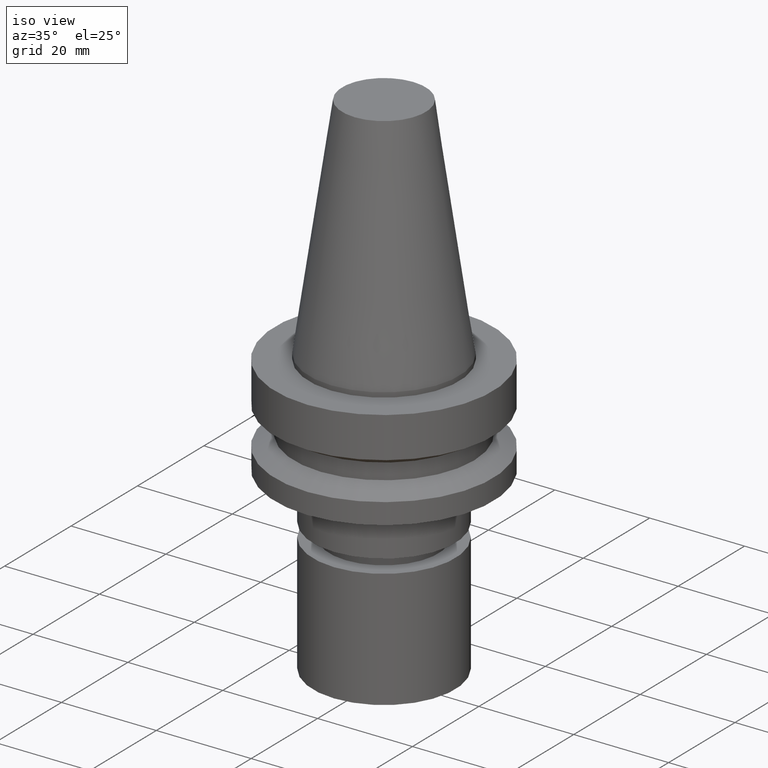
[diagram: clean part render]
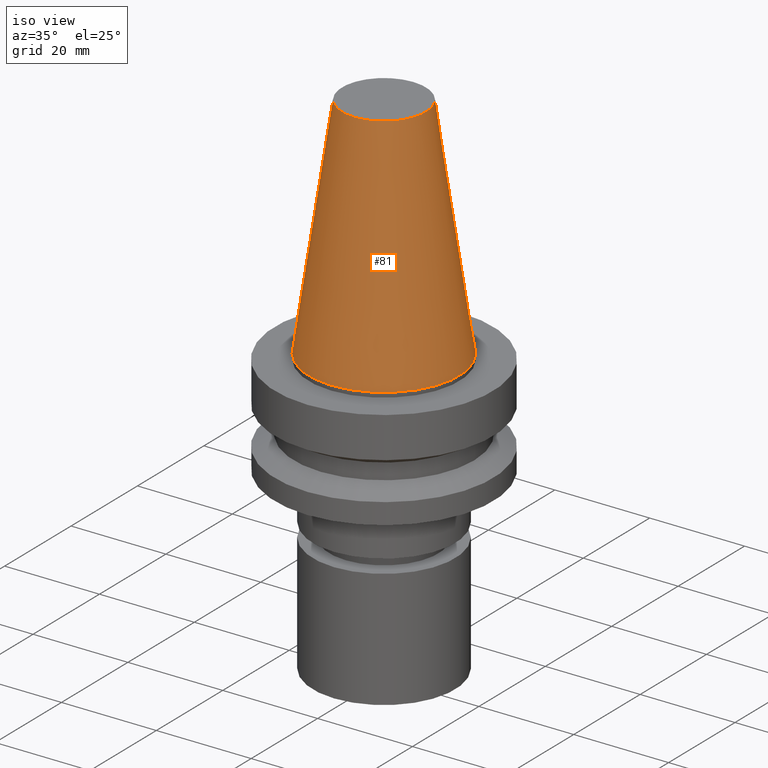
[diagram: same view with one face highlighted and labeled with its STEP entity id]
A machine part, iso view. The second image highlights one B-rep face of the part: STEP entity #81.
In plain terms, the highlighted conical surface has half-angle 8.297 deg.
Its self-contained STEP definition (entity closure, byte-faithful):
#81=ADVANCED_FACE('Unnamed[1]',(#209,#210),#211,.T.);
#130=EDGE_CURVE('Unnamed[1]',#283,#283,#284,.T.);
#169=EDGE_CURVE('Unnamed[1]',#345,#345,#346,.T.);
#209=FACE_BOUND('',#387,.T.);
#210=FACE_BOUND('',#388,.T.);
#211=CONICAL_SURFACE('',#389,12.3457500009933,0.144815870013618);
#283=VERTEX_POINT('',#480);
#284=CIRCLE('',#481,15.875);
#345=VERTEX_POINT('',#555);
#346=CIRCLE('',#556,8.81650000198669);
#387=EDGE_LOOP('',(#589));
#388=EDGE_LOOP('',(#590));
#389=AXIS2_PLACEMENT_3D('',#591,#592,#593);
#480=CARTESIAN_POINT('',(-1.95674482349743E-031,15.875,1.94412679364642E-015));
#481=AXIS2_PLACEMENT_3D('',#670,#671,#672);
#555=CARTESIAN_POINT('',(-2.96364525393659E-015,8.81650000198669,48.4));
#556=AXIS2_PLACEMENT_3D('',#740,#741,#742);
#589=ORIENTED_EDGE('',*,*,#130,.F.);
#590=ORIENTED_EDGE('',*,*,#169,.T.);
#591=CARTESIAN_POINT('',(-1.4818226269683E-015,-2.96364525393659E-015,24.2));
#592=DIRECTION('',(6.12323399573677E-017,1.22464679914735E-016,-1.0));
#593=DIRECTION('',(-1.23259516440783E-032,1.0,1.22464679914735E-016));
#670=CARTESIAN_POINT('',(0.0,0.0,0.0));
#671=DIRECTION('',(6.12323399573677E-017,1.22464679914735E-016,-1.0));
#672=DIRECTION('',(-1.23259516440783E-032,1.0,1.22464679914735E-016));
#740=CARTESIAN_POINT('',(-2.96364525393659E-015,-5.92729050787319E-015,48.4));
#741=DIRECTION('',(6.12323399573677E-017,1.22464679914735E-016,-1.0));
#742=DIRECTION('',(-1.23259516440783E-032,1.0,1.22464679914735E-016));